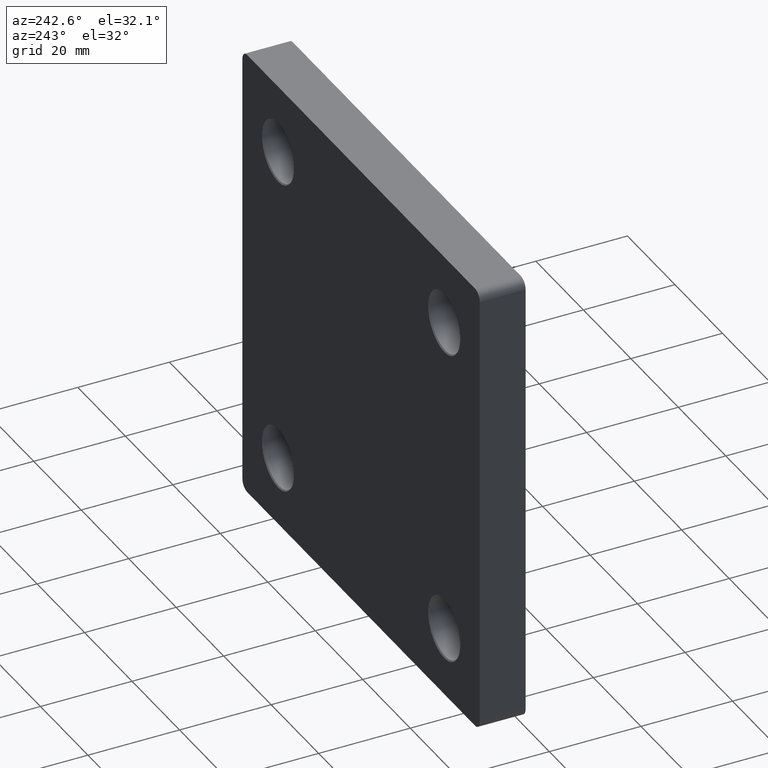
[diagram: clean part render]
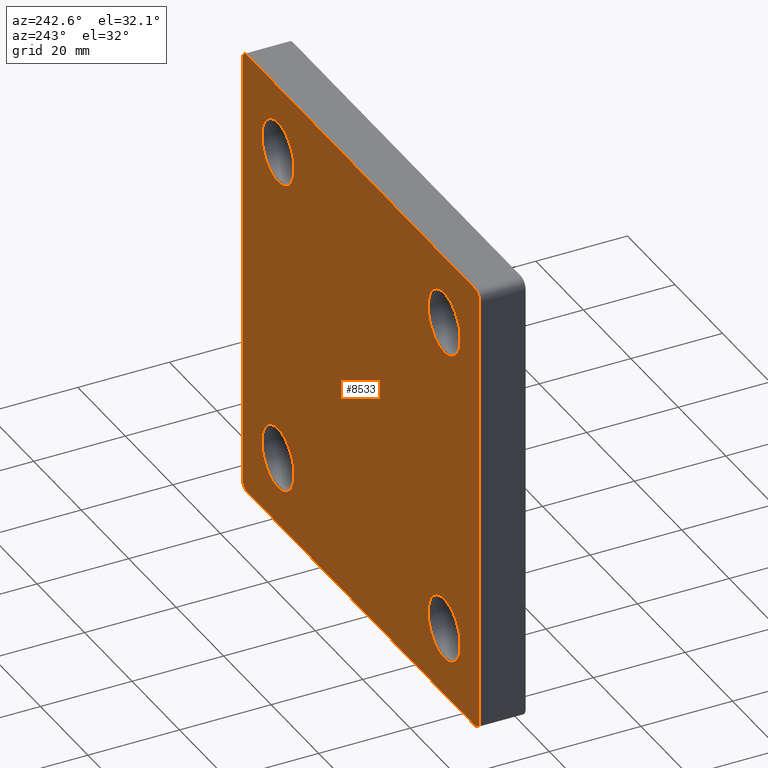
[diagram: same view with one face highlighted and labeled with its STEP entity id]
A machine part, auxiliary view. The second image highlights one B-rep face of the part: STEP entity #8533.
In plain terms, the highlighted planar face has unit normal (0, 1, 0).
Its self-contained STEP definition (entity closure, byte-faithful):
#32 = CIRCLE ( 'NONE', #5926, 6.749999999999992006 ) ;
#69 = EDGE_CURVE ( 'NONE', #703, #8805, #3572, .T. ) ;
#221 = ORIENTED_EDGE ( 'NONE', *, *, #6962, .T. ) ;
#454 = LINE ( 'NONE', #2790, #13206 ) ;
#690 = DIRECTION ( 'NONE',  ( 0.000000000000000000, 0.000000000000000000, 1.000000000000000000 ) ) ;
#703 = VERTEX_POINT ( 'NONE', #5316 ) ;
#813 = AXIS2_PLACEMENT_3D ( 'NONE', #10978, #5620, #2474 ) ;
#878 = ORIENTED_EDGE ( 'NONE', *, *, #12959, .T. ) ;
#890 = CARTESIAN_POINT ( 'NONE',  ( 47.99999999999995737, 10.00000000000000000, -49.99999999999999289 ) ) ;
#953 = EDGE_CURVE ( 'NONE', #9500, #2368, #14097, .T. ) ;
#1101 = ORIENTED_EDGE ( 'NONE', *, *, #69, .T. ) ;
#1324 = ORIENTED_EDGE ( 'NONE', *, *, #3038, .T. ) ;
#1553 = DIRECTION ( 'NONE',  ( 0.000000000000000000, 1.000000000000000000, 0.000000000000000000 ) ) ;
#1644 = CARTESIAN_POINT ( 'NONE',  ( -35.00000000000000000, 10.00000000000000000, -28.25000000000001066 ) ) ;
#1646 = CIRCLE ( 'NONE', #8349, 2.000000000000001776 ) ;
#1813 = AXIS2_PLACEMENT_3D ( 'NONE', #9010, #1553, #6941 ) ;
#1945 = CARTESIAN_POINT ( 'NONE',  ( 35.00000000000000000, 10.00000000000000000, 41.74999999999999289 ) ) ;
#2075 = FACE_BOUND ( 'NONE', #3893, .T. ) ;
#2084 = VERTEX_POINT ( 'NONE', #4164 ) ;
#2098 = VECTOR ( 'NONE', #8411, 1000.000000000000000 ) ;
#2181 = ORIENTED_EDGE ( 'NONE', *, *, #4964, .T. ) ;
#2233 = EDGE_CURVE ( 'NONE', #5437, #7995, #10501, .T. ) ;
#2281 = VERTEX_POINT ( 'NONE', #10845 ) ;
#2368 = VERTEX_POINT ( 'NONE', #12176 ) ;
#2421 = EDGE_CURVE ( 'NONE', #7995, #5437, #13219, .T. ) ;
#2474 = DIRECTION ( 'NONE',  ( 0.000000000000000000, 0.000000000000000000, 1.000000000000000000 ) ) ;
#2790 = CARTESIAN_POINT ( 'NONE',  ( 49.99999999999998579, 10.00000000000000000, -49.99999999999999289 ) ) ;
#2872 = ORIENTED_EDGE ( 'NONE', *, *, #3410, .T. ) ;
#2915 = VERTEX_POINT ( 'NONE', #13480 ) ;
#2933 = CARTESIAN_POINT ( 'NONE',  ( 49.99999999999998579, 10.00000000000000000, -47.99999999999999289 ) ) ;
#2963 = DIRECTION ( 'NONE',  ( -0.000000000000000000, -1.000000000000000000, -0.000000000000000000 ) ) ;
#2990 = AXIS2_PLACEMENT_3D ( 'NONE', #4540, #3532, #6925 ) ;
#3026 = EDGE_CURVE ( 'NONE', #11029, #4479, #1646, .T. ) ;
#3038 = EDGE_CURVE ( 'NONE', #4014, #11029, #454, .T. ) ;
#3145 = PLANE ( 'NONE',  #13463 ) ;
#3252 = DIRECTION ( 'NONE',  ( 0.000000000000000000, 0.000000000000000000, 1.000000000000000000 ) ) ;
#3317 = CIRCLE ( 'NONE', #8524, 6.749999999999992006 ) ;
#3347 = ORIENTED_EDGE ( 'NONE', *, *, #13058, .T. ) ;
#3352 = LINE ( 'NONE', #13564, #13032 ) ;
#3410 = EDGE_CURVE ( 'NONE', #4479, #8354, #3352, .T. ) ;
#3532 = DIRECTION ( 'NONE',  ( -0.000000000000000000, -1.000000000000000000, -0.000000000000000000 ) ) ;
#3569 = CARTESIAN_POINT ( 'NONE',  ( -49.99999999999998579, 10.00000000000000000, 50.00000000000000711 ) ) ;
#3572 = CIRCLE ( 'NONE', #11612, 6.749999999999992006 ) ;
#3703 = DIRECTION ( 'NONE',  ( 0.000000000000000000, -0.000000000000000000, 1.000000000000000000 ) ) ;
#3861 = DIRECTION ( 'NONE',  ( -1.000000000000000000, -0.000000000000000000, 6.938893903907229610E-17 ) ) ;
#3893 = EDGE_LOOP ( 'NONE', ( #6772, #3347 ) ) ;
#3966 = AXIS2_PLACEMENT_3D ( 'NONE', #14013, #10782, #4457 ) ;
#3996 = DIRECTION ( 'NONE',  ( 0.000000000000000000, 0.000000000000000000, 1.000000000000000000 ) ) ;
#4001 = CARTESIAN_POINT ( 'NONE',  ( -35.00000000000000000, 10.00000000000000000, -35.00000000000000000 ) ) ;
#4014 = VERTEX_POINT ( 'NONE', #7508 ) ;
#4164 = CARTESIAN_POINT ( 'NONE',  ( -35.00000000000000000, 10.00000000000000000, -41.74999999999999289 ) ) ;
#4243 = DIRECTION ( 'NONE',  ( -0.000000000000000000, -1.000000000000000000, -0.000000000000000000 ) ) ;
#4308 = ORIENTED_EDGE ( 'NONE', *, *, #7755, .T. ) ;
#4373 = DIRECTION ( 'NONE',  ( 0.000000000000000000, 0.000000000000000000, 1.000000000000000000 ) ) ;
#4457 = DIRECTION ( 'NONE',  ( 0.000000000000000000, 0.000000000000000000, 1.000000000000000000 ) ) ;
#4479 = VERTEX_POINT ( 'NONE', #890 ) ;
#4540 = CARTESIAN_POINT ( 'NONE',  ( -35.00000000000000000, 10.00000000000000000, -35.00000000000000000 ) ) ;
#4753 = ORIENTED_EDGE ( 'NONE', *, *, #2233, .T. ) ;
#4964 = EDGE_CURVE ( 'NONE', #10001, #2084, #3317, .T. ) ;
#5001 = CARTESIAN_POINT ( 'NONE',  ( -49.99999999999998579, 10.00000000000000000, 48.00000000000001421 ) ) ;
#5123 = DIRECTION ( 'NONE',  ( 0.000000000000000000, 0.000000000000000000, 1.000000000000000000 ) ) ;
#5213 = EDGE_LOOP ( 'NONE', ( #4308, #1101 ) ) ;
#5262 = EDGE_LOOP ( 'NONE', ( #2181, #5735 ) ) ;
#5268 = AXIS2_PLACEMENT_3D ( 'NONE', #9535, #7546, #10825 ) ;
#5316 = CARTESIAN_POINT ( 'NONE',  ( -35.00000000000000000, 10.00000000000000000, 28.25000000000001066 ) ) ;
#5437 = VERTEX_POINT ( 'NONE', #12274 ) ;
#5620 = DIRECTION ( 'NONE',  ( 0.000000000000000000, 1.000000000000000000, 0.000000000000000000 ) ) ;
#5735 = ORIENTED_EDGE ( 'NONE', *, *, #8300, .T. ) ;
#5926 = AXIS2_PLACEMENT_3D ( 'NONE', #11823, #12913, #8736 ) ;
#6119 = ORIENTED_EDGE ( 'NONE', *, *, #3026, .T. ) ;
#6408 = DIRECTION ( 'NONE',  ( 0.000000000000000000, 0.000000000000000000, 1.000000000000000000 ) ) ;
#6494 = ORIENTED_EDGE ( 'NONE', *, *, #10322, .T. ) ;
#6580 = VERTEX_POINT ( 'NONE', #12265 ) ;
#6772 = ORIENTED_EDGE ( 'NONE', *, *, #953, .T. ) ;
#6925 = DIRECTION ( 'NONE',  ( 0.000000000000000000, 0.000000000000000000, 1.000000000000000000 ) ) ;
#6941 = DIRECTION ( 'NONE',  ( 0.000000000000000000, 0.000000000000000000, 1.000000000000000000 ) ) ;
#6962 = EDGE_CURVE ( 'NONE', #2915, #4014, #8387, .T. ) ;
#7013 = CARTESIAN_POINT ( 'NONE',  ( -48.00000000000000000, 10.00000000000000000, -49.99999999999998579 ) ) ;
#7073 = AXIS2_PLACEMENT_3D ( 'NONE', #13085, #4243, #6408 ) ;
#7453 = CARTESIAN_POINT ( 'NONE',  ( -35.00000000000000000, 10.00000000000000000, 41.74999999999999289 ) ) ;
#7508 = CARTESIAN_POINT ( 'NONE',  ( 50.00000000000001421, 10.00000000000000000, 48.00000000000000711 ) ) ;
#7546 = DIRECTION ( 'NONE',  ( 0.000000000000000000, 1.000000000000000000, 0.000000000000000000 ) ) ;
#7661 = CARTESIAN_POINT ( 'NONE',  ( 35.00000000000000000, 10.00000000000000000, -35.00000000000000000 ) ) ;
#7755 = EDGE_CURVE ( 'NONE', #8805, #703, #32, .T. ) ;
#7835 = VECTOR ( 'NONE', #11139, 1000.000000000000000 ) ;
#7845 = EDGE_CURVE ( 'NONE', #11148, #6580, #8036, .T. ) ;
#7977 = EDGE_CURVE ( 'NONE', #8354, #2281, #12288, .T. ) ;
#7995 = VERTEX_POINT ( 'NONE', #12382 ) ;
#8036 = CIRCLE ( 'NONE', #813, 2.000000000000001776 ) ;
#8201 = FACE_OUTER_BOUND ( 'NONE', #12337, .T. ) ;
#8242 = ORIENTED_EDGE ( 'NONE', *, *, #2421, .T. ) ;
#8300 = EDGE_CURVE ( 'NONE', #2084, #10001, #11760, .T. ) ;
#8349 = AXIS2_PLACEMENT_3D ( 'NONE', #12614, #9384, #5123 ) ;
#8354 = VERTEX_POINT ( 'NONE', #7013 ) ;
#8387 = CIRCLE ( 'NONE', #5268, 2.000000000000001776 ) ;
#8411 = DIRECTION ( 'NONE',  ( 1.387778780781445676E-16, 0.000000000000000000, 1.000000000000000000 ) ) ;
#8524 = AXIS2_PLACEMENT_3D ( 'NONE', #4001, #2963, #690 ) ;
#8533 = ADVANCED_FACE ( 'NONE', ( #2075, #8881, #12951, #11092, #8201 ), #3145, .T. ) ;
#8617 = AXIS2_PLACEMENT_3D ( 'NONE', #9465, #10423, #3996 ) ;
#8725 = LINE ( 'NONE', #12681, #2098 ) ;
#8736 = DIRECTION ( 'NONE',  ( 0.000000000000000000, 0.000000000000000000, 1.000000000000000000 ) ) ;
#8805 = VERTEX_POINT ( 'NONE', #7453 ) ;
#8881 = FACE_BOUND ( 'NONE', #10033, .T. ) ;
#9010 = CARTESIAN_POINT ( 'NONE',  ( -48.00000000000000000, 10.00000000000000000, -47.99999999999998579 ) ) ;
#9384 = DIRECTION ( 'NONE',  ( 0.000000000000000000, 1.000000000000000000, 0.000000000000000000 ) ) ;
#9465 = CARTESIAN_POINT ( 'NONE',  ( 35.00000000000000000, 10.00000000000000000, -35.00000000000000000 ) ) ;
#9500 = VERTEX_POINT ( 'NONE', #1945 ) ;
#9535 = CARTESIAN_POINT ( 'NONE',  ( 48.00000000000001421, 10.00000000000000000, 48.00000000000000711 ) ) ;
#9941 = CARTESIAN_POINT ( 'NONE',  ( 0.000000000000000000, 10.00000000000000000, 0.000000000000000000 ) ) ;
#10001 = VERTEX_POINT ( 'NONE', #1644 ) ;
#10033 = EDGE_LOOP ( 'NONE', ( #4753, #8242 ) ) ;
#10322 = EDGE_CURVE ( 'NONE', #6580, #2915, #13088, .T. ) ;
#10423 = DIRECTION ( 'NONE',  ( -0.000000000000000000, -1.000000000000000000, -0.000000000000000000 ) ) ;
#10501 = CIRCLE ( 'NONE', #8617, 6.749999999999992006 ) ;
#10528 = AXIS2_PLACEMENT_3D ( 'NONE', #7661, #10894, #4373 ) ;
#10782 = DIRECTION ( 'NONE',  ( -0.000000000000000000, -1.000000000000000000, -0.000000000000000000 ) ) ;
#10825 = DIRECTION ( 'NONE',  ( 0.000000000000000000, 0.000000000000000000, 1.000000000000000000 ) ) ;
#10845 = CARTESIAN_POINT ( 'NONE',  ( -50.00000000000000000, 10.00000000000000000, -47.99999999999998579 ) ) ;
#10894 = DIRECTION ( 'NONE',  ( -0.000000000000000000, -1.000000000000000000, -0.000000000000000000 ) ) ;
#10978 = CARTESIAN_POINT ( 'NONE',  ( -47.99999999999998579, 10.00000000000000000, 48.00000000000000711 ) ) ;
#11002 = DIRECTION ( 'NONE',  ( -0.000000000000000000, -1.000000000000000000, -0.000000000000000000 ) ) ;
#11029 = VERTEX_POINT ( 'NONE', #2933 ) ;
#11092 = FACE_BOUND ( 'NONE', #5213, .T. ) ;
#11139 = DIRECTION ( 'NONE',  ( 1.000000000000000000, 0.000000000000000000, 0.000000000000000000 ) ) ;
#11148 = VERTEX_POINT ( 'NONE', #5001 ) ;
#11435 = ORIENTED_EDGE ( 'NONE', *, *, #7977, .T. ) ;
#11612 = AXIS2_PLACEMENT_3D ( 'NONE', #14093, #11002, #3252 ) ;
#11760 = CIRCLE ( 'NONE', #2990, 6.749999999999992006 ) ;
#11823 = CARTESIAN_POINT ( 'NONE',  ( -35.00000000000000000, 10.00000000000000000, 35.00000000000000000 ) ) ;
#12176 = CARTESIAN_POINT ( 'NONE',  ( 35.00000000000000000, 10.00000000000000000, 28.25000000000001066 ) ) ;
#12265 = CARTESIAN_POINT ( 'NONE',  ( -47.99999999999998579, 10.00000000000000000, 50.00000000000000711 ) ) ;
#12274 = CARTESIAN_POINT ( 'NONE',  ( 35.00000000000000000, 10.00000000000000000, -28.25000000000001066 ) ) ;
#12288 = CIRCLE ( 'NONE', #1813, 2.000000000000001776 ) ;
#12337 = EDGE_LOOP ( 'NONE', ( #1324, #6119, #2872, #11435, #878, #13912, #6494, #221 ) ) ;
#12382 = CARTESIAN_POINT ( 'NONE',  ( 35.00000000000000000, 10.00000000000000000, -41.74999999999999289 ) ) ;
#12565 = DIRECTION ( 'NONE',  ( -2.775557561562891351E-16, -0.000000000000000000, -1.000000000000000000 ) ) ;
#12614 = CARTESIAN_POINT ( 'NONE',  ( 47.99999999999998579, 10.00000000000000000, -47.99999999999999289 ) ) ;
#12681 = CARTESIAN_POINT ( 'NONE',  ( -50.00000000000000000, 10.00000000000000000, -49.99999999999998579 ) ) ;
#12913 = DIRECTION ( 'NONE',  ( -0.000000000000000000, -1.000000000000000000, -0.000000000000000000 ) ) ;
#12951 = FACE_BOUND ( 'NONE', #5262, .T. ) ;
#12959 = EDGE_CURVE ( 'NONE', #2281, #11148, #8725, .T. ) ;
#13032 = VECTOR ( 'NONE', #3861, 1000.000000000000000 ) ;
#13058 = EDGE_CURVE ( 'NONE', #2368, #9500, #13316, .T. ) ;
#13085 = CARTESIAN_POINT ( 'NONE',  ( 35.00000000000000000, 10.00000000000000000, 35.00000000000000000 ) ) ;
#13088 = LINE ( 'NONE', #3569, #7835 ) ;
#13206 = VECTOR ( 'NONE', #12565, 1000.000000000000000 ) ;
#13219 = CIRCLE ( 'NONE', #10528, 6.749999999999992006 ) ;
#13316 = CIRCLE ( 'NONE', #3966, 6.749999999999992006 ) ;
#13445 = DIRECTION ( 'NONE',  ( 0.000000000000000000, 1.000000000000000000, 0.000000000000000000 ) ) ;
#13463 = AXIS2_PLACEMENT_3D ( 'NONE', #9941, #13445, #3703 ) ;
#13480 = CARTESIAN_POINT ( 'NONE',  ( 48.00000000000001421, 10.00000000000000000, 50.00000000000000711 ) ) ;
#13564 = CARTESIAN_POINT ( 'NONE',  ( -50.00000000000000000, 10.00000000000000000, -49.99999999999998579 ) ) ;
#13912 = ORIENTED_EDGE ( 'NONE', *, *, #7845, .T. ) ;
#14013 = CARTESIAN_POINT ( 'NONE',  ( 35.00000000000000000, 10.00000000000000000, 35.00000000000000000 ) ) ;
#14093 = CARTESIAN_POINT ( 'NONE',  ( -35.00000000000000000, 10.00000000000000000, 35.00000000000000000 ) ) ;
#14097 = CIRCLE ( 'NONE', #7073, 6.749999999999992006 ) ;